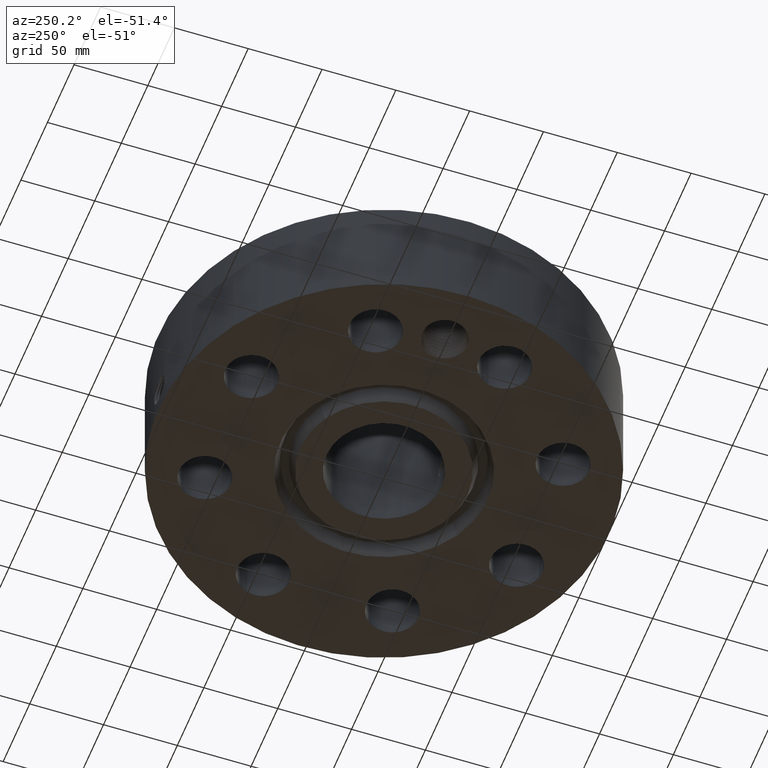
[diagram: clean part render]
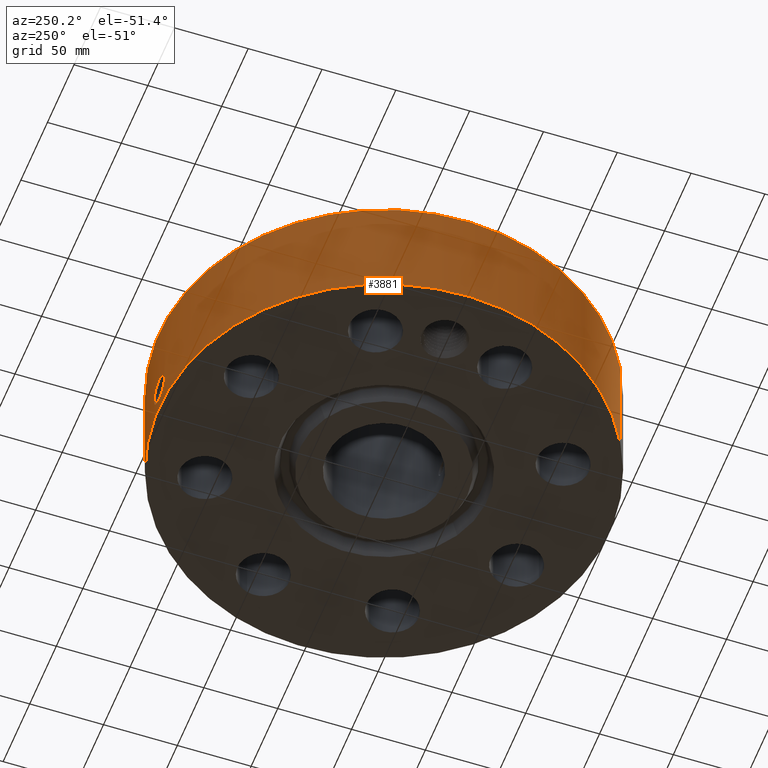
[diagram: same view with one face highlighted and labeled with its STEP entity id]
A machine part, auxiliary view. The second image highlights one B-rep face of the part: STEP entity #3881.
In plain terms, the highlighted cylindrical surface (partial cylindrical patch) has radius 152.4 mm, axis along (0, 0, -1).
Its self-contained STEP definition (entity closure, byte-faithful):
#2927=AXIS2_PLACEMENT_3D('Circle Axis2P3D',#2925,#2926,$) ;
#3768=AXIS2_PLACEMENT_3D('Cylinder Axis2P3D',#3765,#3766,#3767) ;
#3772=AXIS2_PLACEMENT_3D('Circle Axis2P3D',#3770,#3771,$) ;
#2920=CARTESIAN_POINT('Vertex',(2.87655323164,5.26549537136,2.99500000001)) ;
#2922=CARTESIAN_POINT('Vertex',(-2.87655323164,-5.26549537136,2.99500000001)) ;
#2925=CARTESIAN_POINT('Axis2P3D Location',(0.,0.,2.99500000001)) ;
#3765=CARTESIAN_POINT('Axis2P3D Location',(0.,0.,3.49750000001)) ;
#3770=CARTESIAN_POINT('Axis2P3D Location',(0.,0.,5.59482469102E-016)) ;
#3774=CARTESIAN_POINT('Vertex',(-2.87655323164,-5.26549537136,5.59482469102E-016)) ;
#3776=CARTESIAN_POINT('Vertex',(2.87655323164,5.26549537136,5.59482469102E-016)) ;
#3779=CARTESIAN_POINT('Line Origine',(-2.87655323164,-5.26549537136,1.49750000001)) ;
#3784=CARTESIAN_POINT('Line Origine',(2.87655323164,5.26549537136,1.49750000001)) ;
#3796=CARTESIAN_POINT('Control Point',(-0.0620313751665,5.99967933383,1.09863339002)) ;
#3797=CARTESIAN_POINT('Control Point',(-0.0418051215624,5.99988845539,1.10223890264)) ;
#3798=CARTESIAN_POINT('Control Point',(-0.021262881252,5.99999750303,1.10407680521)) ;
#3799=CARTESIAN_POINT('Control Point',(-0.000716685735703,5.99999995722,1.10411849776)) ;
#3800=CARTESIAN_POINT('Vertex',(-0.0620121554462,5.99967980413,1.09863711522)) ;
#3802=CARTESIAN_POINT('Vertex',(-0.000716507176946,5.99999995724,1.1041185081)) ;
#3806=CARTESIAN_POINT('Control Point',(-0.0620120338,5.99967953377,1.0986364862)) ;
#3807=CARTESIAN_POINT('Control Point',(-0.0999603077154,5.99928730455,1.0933071734)) ;
#3808=CARTESIAN_POINT('Control Point',(-0.137033778375,5.99853112465,1.08111285389)) ;
#3809=CARTESIAN_POINT('Control Point',(-0.170989225715,5.99756306219,1.0630260437)) ;
#3810=CARTESIAN_POINT('Vertex',(-0.170989225715,5.99756306219,1.0630260437)) ;
#3814=CARTESIAN_POINT('Control Point',(-0.0295351402931,5.99992730587,0.341080982981)) ;
#3815=CARTESIAN_POINT('Control Point',(-0.0846745044812,5.99965587778,0.348131858297)) ;
#3816=CARTESIAN_POINT('Control Point',(-0.138214667044,5.99875889272,0.365569741985)) ;
#3817=CARTESIAN_POINT('Control Point',(-0.187352052725,5.99732240205,0.392824988605)) ;
#3818=CARTESIAN_POINT('Control Point',(-0.258352877196,5.99461263659,0.450930997821)) ;
#3819=CARTESIAN_POINT('Control Point',(-0.309097794788,5.9920774195,0.52496902213)) ;
#3820=CARTESIAN_POINT('Control Point',(-0.325805890283,5.99117148008,0.556399072446)) ;
#3821=CARTESIAN_POINT('Control Point',(-0.358917573714,5.98929296478,0.639513814554)) ;
#3822=CARTESIAN_POINT('Control Point',(-0.368320827772,5.98867477844,0.728174177193)) ;
#3823=CARTESIAN_POINT('Control Point',(-0.365106874125,5.98888227647,0.781926028021)) ;
#3824=CARTESIAN_POINT('Control Point',(-0.341822978626,5.99034292304,0.883059244173)) ;
#3825=CARTESIAN_POINT('Control Point',(-0.287330985431,5.99321319149,0.970766745444)) ;
#3826=CARTESIAN_POINT('Control Point',(-0.253998765783,5.99479985665,1.00857685877)) ;
#3827=CARTESIAN_POINT('Control Point',(-0.214595010582,5.9963198707,1.03979885525)) ;
#3828=CARTESIAN_POINT('Control Point',(-0.170989225715,5.99756306219,1.0630260437)) ;
#3829=CARTESIAN_POINT('Vertex',(-0.0295351402931,5.99992730587,0.341080982981)) ;
#3833=CARTESIAN_POINT('Control Point',(-0.0295351402931,5.99992730587,0.341080982981)) ;
#3834=CARTESIAN_POINT('Control Point',(-0.0196834672343,5.99997580155,0.340859411213)) ;
#3835=CARTESIAN_POINT('Control Point',(-0.00982897000803,6.00000000449,0.340957429643)) ;
#3836=CARTESIAN_POINT('Control Point',(2.72878353257E-006,6.00000000002,0.341374667804)) ;
#3837=CARTESIAN_POINT('Vertex',(2.72878353499E-006,6.00000000002,0.341374667804)) ;
#3841=CARTESIAN_POINT('Control Point',(0.193999690977,5.99686285654,0.394894722228)) ;
#3842=CARTESIAN_POINT('Control Point',(0.134720308028,5.99878055622,0.362475031144)) ;
#3843=CARTESIAN_POINT('Control Point',(0.0678020630853,5.99999996919,0.344251940849)) ;
#3844=CARTESIAN_POINT('Control Point',(2.72878353257E-006,6.00000000002,0.341374667804)) ;
#3845=CARTESIAN_POINT('Vertex',(0.193999690977,5.99686285654,0.394894722228)) ;
#3849=CARTESIAN_POINT('Control Point',(0.193999690977,5.99686285654,0.394894722228)) ;
#3850=CARTESIAN_POINT('Control Point',(0.251859430826,5.9949910826,0.426538017278)) ;
#3851=CARTESIAN_POINT('Control Point',(0.303627818527,5.99261782214,0.469308847371)) ;
#3852=CARTESIAN_POINT('Control Point',(0.34632352269,5.99011882155,0.522241420591)) ;
#3853=CARTESIAN_POINT('Control Point',(0.392159435438,5.987197435,0.615488394898)) ;
#3854=CARTESIAN_POINT('Control Point',(0.404127726595,5.98637322065,0.716648439422)) ;
#3855=CARTESIAN_POINT('Control Point',(0.403956515951,5.9863850891,0.752172149897)) ;
#3856=CARTESIAN_POINT('Control Point',(0.393352505396,5.98711362615,0.834793758365)) ;
#3857=CARTESIAN_POINT('Control Point',(0.360172909184,5.98923070663,0.910978496909)) ;
#3858=CARTESIAN_POINT('Control Point',(0.334241422616,5.99079354896,0.951004776429)) ;
#3859=CARTESIAN_POINT('Control Point',(0.263025787983,5.99456901478,1.03050212469)) ;
#3860=CARTESIAN_POINT('Control Point',(0.170276324284,5.99794363108,1.08121605486)) ;
#3861=CARTESIAN_POINT('Control Point',(0.114329626615,5.99932885488,1.09932919129)) ;
#3862=CARTESIAN_POINT('Control Point',(0.0567532053385,6.00000024467,1.10693656282)) ;
#3863=CARTESIAN_POINT('Control Point',(-2.58579355287E-005,5.99999999997,1.10415298435)) ;
#3864=CARTESIAN_POINT('Vertex',(-2.58579355256E-005,5.99999999997,1.10415298435)) ;
#3868=CARTESIAN_POINT('Control Point',(-0.000716507165989,5.99999995724,1.10411850809)) ;
#3869=CARTESIAN_POINT('Control Point',(-0.000371206102448,5.99999999848,1.10413605376)) ;
#3870=CARTESIAN_POINT('Control Point',(-2.58579423189E-005,5.99999999997,1.10415298435)) ;
#2926=DIRECTION('Axis2P3D Direction',(0.,0.,-0.0393700787402)) ;
#3766=DIRECTION('Axis2P3D Direction',(0.,0.,-0.0393700787402)) ;
#3767=DIRECTION('Axis2P3D XDirection',(0.0188750212049,0.0345504945626,0.)) ;
#3771=DIRECTION('Axis2P3D Direction',(0.,0.,-0.0393700787402)) ;
#3780=DIRECTION('Vector Direction',(0.,0.,-0.0393700787402)) ;
#3785=DIRECTION('Vector Direction',(0.,0.,-0.0393700787402)) ;
#3781=VECTOR('Line Direction',#3780,0.0393700787402) ;
#3786=VECTOR('Line Direction',#3785,0.0393700787402) ;
#3790=ORIENTED_EDGE('',*,*,#3778,.F.) ;
#3791=ORIENTED_EDGE('',*,*,#3783,.T.) ;
#3792=ORIENTED_EDGE('',*,*,#2929,.T.) ;
#3793=ORIENTED_EDGE('',*,*,#3788,.F.) ;
#3873=ORIENTED_EDGE('',*,*,#3804,.F.) ;
#3874=ORIENTED_EDGE('',*,*,#3812,.T.) ;
#3875=ORIENTED_EDGE('',*,*,#3831,.F.) ;
#3876=ORIENTED_EDGE('',*,*,#3839,.T.) ;
#3877=ORIENTED_EDGE('',*,*,#3847,.F.) ;
#3878=ORIENTED_EDGE('',*,*,#3866,.T.) ;
#3879=ORIENTED_EDGE('',*,*,#3871,.F.) ;
#3880=FACE_BOUND('',#3872,.T.) ;
#3881=ADVANCED_FACE('PartBody',(#3794,#3880),#3769,.T.) ;
#3795=B_SPLINE_CURVE_WITH_KNOTS('',3,(#3796,#3797,#3798,#3799),.UNSPECIFIED.,.F.,.U.,(4,4),(4.24226344059,6.52167903465),.UNSPECIFIED.) ;
#3805=B_SPLINE_CURVE_WITH_KNOTS('',3,(#3806,#3807,#3808,#3809),.UNSPECIFIED.,.F.,.U.,(4,4),(0.,4.30568293149),.UNSPECIFIED.) ;
#3813=B_SPLINE_CURVE_WITH_KNOTS('',5,(#3814,#3815,#3816,#3817,#3818,#3819,#3820,#3821,#3822,#3823,#3824,#3825,#3826,#3827,#3828),.UNSPECIFIED.,.F.,.U.,(6,3,3,3,6),(0.,9.66128671738,16.0502741792,25.8410605913,35.0566994884),.UNSPECIFIED.) ;
#3832=B_SPLINE_CURVE_WITH_KNOTS('',3,(#3833,#3834,#3835,#3836),.UNSPECIFIED.,.F.,.U.,(4,4),(0.,1.0275274917),.UNSPECIFIED.) ;
#3840=B_SPLINE_CURVE_WITH_KNOTS('',3,(#3841,#3842,#3843,#3844),.UNSPECIFIED.,.F.,.U.,(4,4),(0.,7.08582326175),.UNSPECIFIED.) ;
#3848=B_SPLINE_CURVE_WITH_KNOTS('',5,(#3849,#3850,#3851,#3852,#3853,#3854,#3855,#3856,#3857,#3858,#3859,#3860,#3861,#3862,#3863),.UNSPECIFIED.,.F.,.U.,(6,3,3,3,6),(0.,11.5268827009,17.6888413592,26.0538817283,36.6670648831),.UNSPECIFIED.) ;
#3867=B_SPLINE_CURVE_WITH_KNOTS('',2,(#3868,#3869,#3870),.UNSPECIFIED.,.F.,.U.,(3,3),(1.07550216324,1.10132325484),.UNSPECIFIED.) ;
#2928=CIRCLE('generated circle',#2927,6.00000000002) ;
#3773=CIRCLE('generated circle',#3772,6.00000000002) ;
#3769=CYLINDRICAL_SURFACE('generated cylinder',#3768,6.00000000002) ;
#2929=EDGE_CURVE('',#2923,#2921,#2928,.T.) ;
#3778=EDGE_CURVE('',#3775,#3777,#3773,.T.) ;
#3783=EDGE_CURVE('',#3775,#2923,#3782,.F.) ;
#3788=EDGE_CURVE('',#3777,#2921,#3787,.F.) ;
#3804=EDGE_CURVE('',#3801,#3803,#3795,.T.) ;
#3812=EDGE_CURVE('',#3801,#3811,#3805,.T.) ;
#3831=EDGE_CURVE('',#3830,#3811,#3813,.T.) ;
#3839=EDGE_CURVE('',#3830,#3838,#3832,.T.) ;
#3847=EDGE_CURVE('',#3846,#3838,#3840,.T.) ;
#3866=EDGE_CURVE('',#3846,#3865,#3848,.T.) ;
#3871=EDGE_CURVE('',#3803,#3865,#3867,.T.) ;
#3789=EDGE_LOOP('',(#3790,#3791,#3792,#3793)) ;
#3872=EDGE_LOOP('',(#3873,#3874,#3875,#3876,#3877,#3878,#3879)) ;
#3794=FACE_OUTER_BOUND('',#3789,.T.) ;
#3782=LINE('Line',#3779,#3781) ;
#3787=LINE('Line',#3784,#3786) ;
#2921=VERTEX_POINT('',#2920) ;
#2923=VERTEX_POINT('',#2922) ;
#3775=VERTEX_POINT('',#3774) ;
#3777=VERTEX_POINT('',#3776) ;
#3801=VERTEX_POINT('',#3800) ;
#3803=VERTEX_POINT('',#3802) ;
#3811=VERTEX_POINT('',#3810) ;
#3830=VERTEX_POINT('',#3829) ;
#3838=VERTEX_POINT('',#3837) ;
#3846=VERTEX_POINT('',#3845) ;
#3865=VERTEX_POINT('',#3864) ;